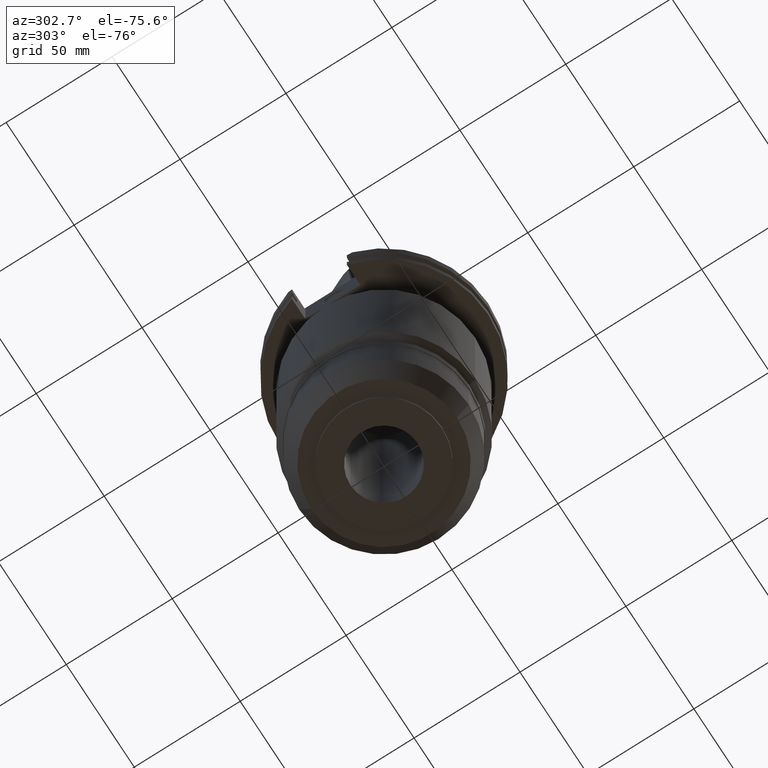
[diagram: clean part render]
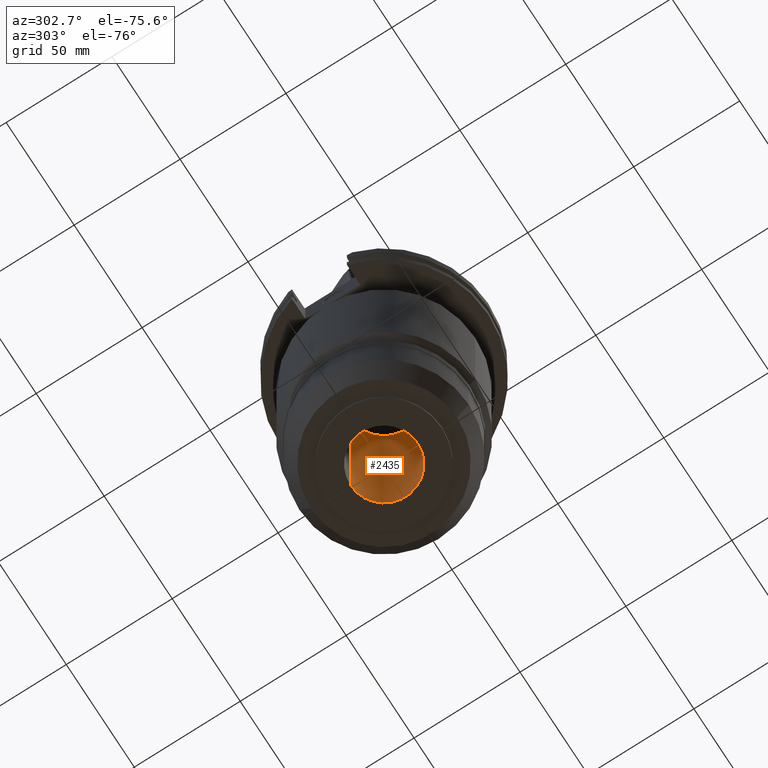
[diagram: same view with one face highlighted and labeled with its STEP entity id]
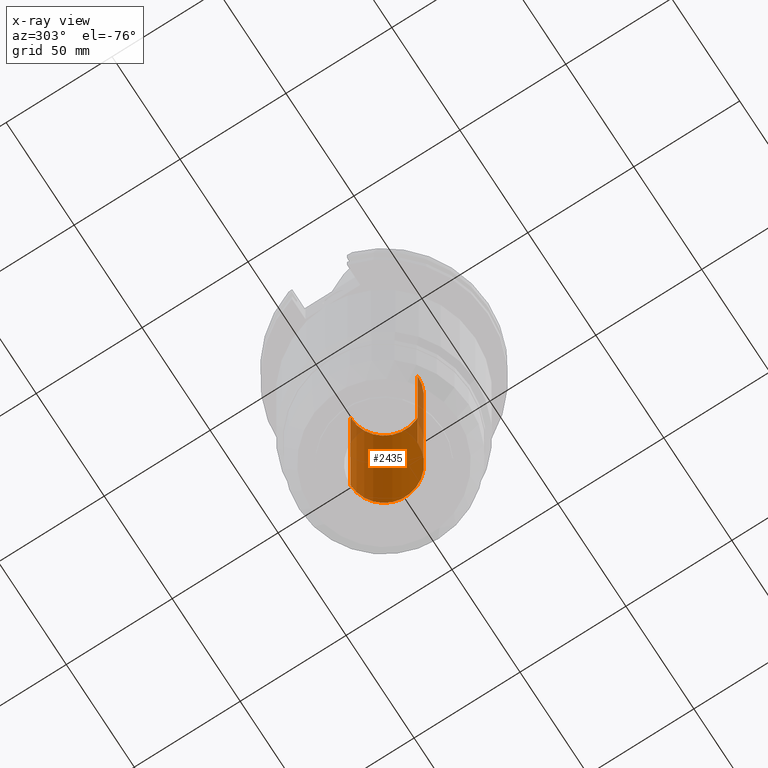
[diagram: x-ray of the same camera — body ghosted, the highlighted face saturated]
A machine part, auxiliary view. The second image highlights one B-rep face of the part: STEP entity #2435.
The next image is the same camera in x-ray: the body ghosted, the highlighted face saturated — about 12% of this face is hidden behind the body in this view.
In plain terms, the highlighted cylindrical surface (partial cylindrical patch) has radius 15.875 mm, axis along (0, 0, -1).
Its self-contained STEP definition (entity closure, byte-faithful):
#1128=CARTESIAN_POINT('',(0.E0,2.625887666732E-14,-1.548E2));
#1129=DIRECTION('',(0.E0,0.E0,-1.E0));
#1130=DIRECTION('',(0.E0,1.E0,0.E0));
#1131=AXIS2_PLACEMENT_3D('',#1128,#1129,#1130);
#1136=DIRECTION('',(0.E0,0.E0,1.E0));
#1137=VECTOR('',#1136,1.074E2);
#1138=CARTESIAN_POINT('',(0.E0,-1.5875E1,-1.548E2));
#1139=LINE('',#1138,#1137);
#1143=DIRECTION('',(0.E0,0.E0,1.E0));
#1144=VECTOR('',#1143,1.074E2);
#1145=CARTESIAN_POINT('',(0.E0,1.5875E1,-1.548E2));
#1146=LINE('',#1145,#1144);
#1150=CARTESIAN_POINT('',(0.E0,2.625887666732E-14,-4.74E1));
#1151=DIRECTION('',(0.E0,0.E0,1.E0));
#1152=DIRECTION('',(0.E0,-1.E0,0.E0));
#1153=AXIS2_PLACEMENT_3D('',#1150,#1151,#1152);
#1350=CARTESIAN_POINT('',(0.E0,-1.5875E1,-4.74E1));
#1351=CARTESIAN_POINT('',(0.E0,1.5875E1,-4.74E1));
#1352=VERTEX_POINT('',#1350);
#1353=VERTEX_POINT('',#1351);
#1354=CARTESIAN_POINT('',(0.E0,1.5875E1,-1.548E2));
#1355=VERTEX_POINT('',#1354);
#1356=CARTESIAN_POINT('',(0.E0,-1.5875E1,-1.548E2));
#1357=VERTEX_POINT('',#1356);
#2423=CARTESIAN_POINT('',(0.E0,2.625887666732E-14,1.1442E2));
#2424=DIRECTION('',(0.E0,0.E0,-1.E0));
#2425=DIRECTION('',(0.E0,-1.E0,0.E0));
#2426=AXIS2_PLACEMENT_3D('',#2423,#2424,#2425);
#2427=CYLINDRICAL_SURFACE('',#2426,1.5875E1);
#2428=ORIENTED_EDGE('',*,*,#2413,.T.);
#2430=ORIENTED_EDGE('',*,*,#2429,.F.);
#2431=ORIENTED_EDGE('',*,*,#2416,.F.);
#2432=ORIENTED_EDGE('',*,*,#2403,.F.);
#2433=EDGE_LOOP('',(#2428,#2430,#2431,#2432));
#2434=FACE_OUTER_BOUND('',#2433,.F.);
#1132=CIRCLE('',#1131,1.5875E1);
#1154=CIRCLE('',#1153,1.5875E1);
#2403=EDGE_CURVE('',#1355,#1357,#1132,.T.);
#2413=EDGE_CURVE('',#1355,#1353,#1146,.T.);
#2416=EDGE_CURVE('',#1357,#1352,#1139,.T.);
#2429=EDGE_CURVE('',#1352,#1353,#1154,.T.);
#2435=ADVANCED_FACE('',(#2434),#2427,.F.);